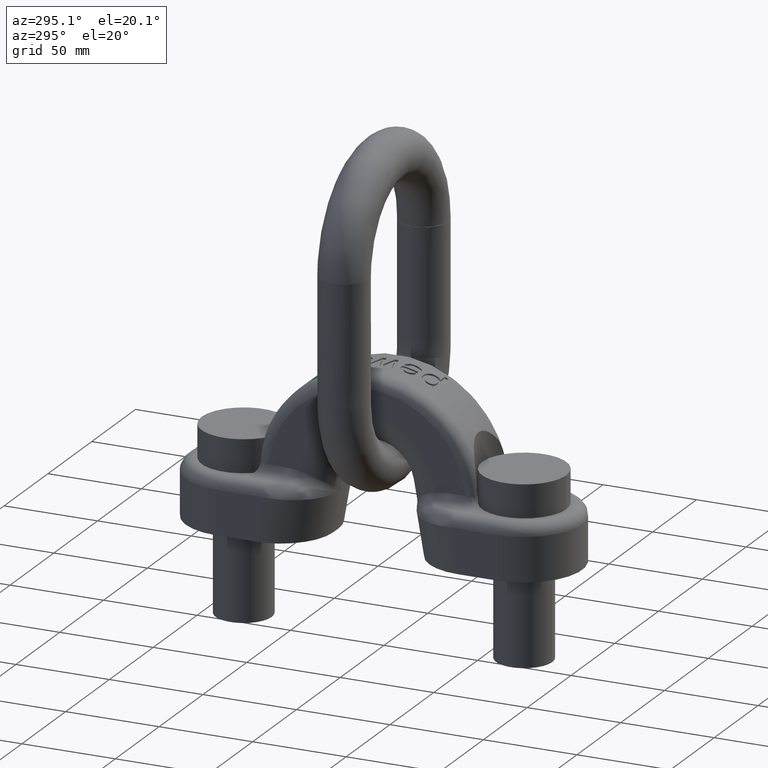
[diagram: clean part render]
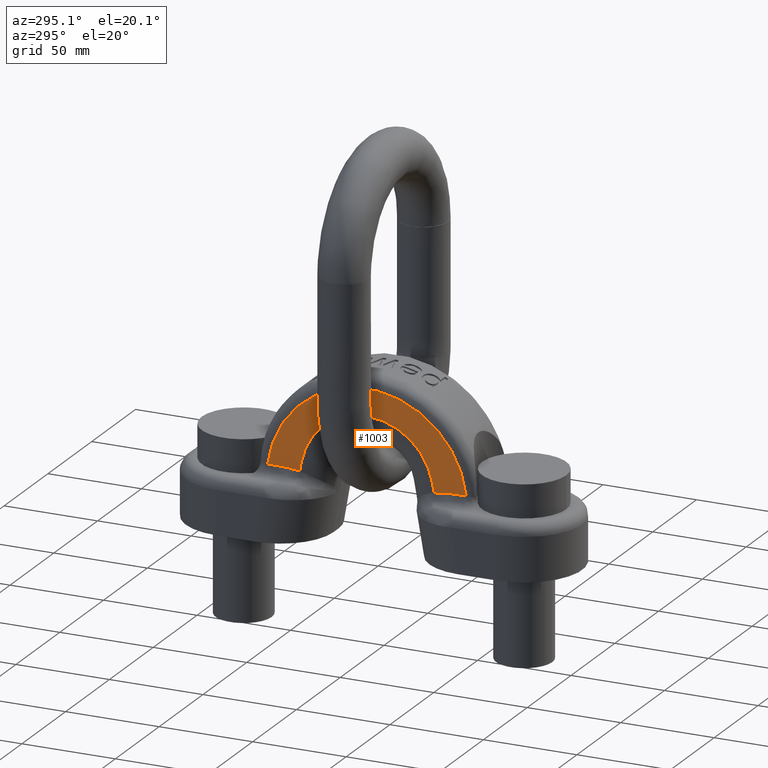
[diagram: same view with one face highlighted and labeled with its STEP entity id]
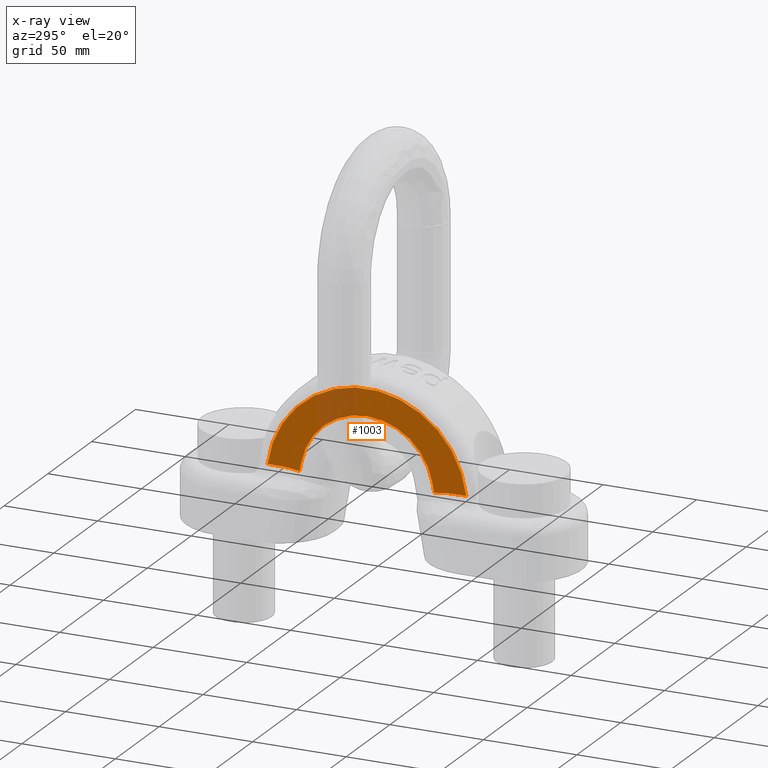
[diagram: x-ray of the same camera — body ghosted, the highlighted face saturated]
A machine part, auxiliary view. The second image highlights one B-rep face of the part: STEP entity #1003.
The next image is the same camera in x-ray: the body ghosted, the highlighted face saturated — about 17% of this face is hidden behind the body in this view.
In plain terms, the highlighted planar face has unit normal (-1, 0, 0).
Its self-contained STEP definition (entity closure, byte-faithful):
#754=PLANE('',#3606);
#851=FACE_OUTER_BOUND('',#1576,.T.);
#1003=ADVANCED_FACE('',(#851),#754,.T.);
#1227=LINE('',#5268,#1353);
#1228=LINE('',#5278,#1354);
#1229=LINE('',#5279,#1355);
#1230=LINE('',#5288,#1356);
#1353=VECTOR('',#3934,1.);
#1354=VECTOR('',#3935,1.);
#1355=VECTOR('',#3936,1.);
#1356=VECTOR('',#3937,1.);
#1576=EDGE_LOOP('',(#2236,#2237,#2238,#2239,#2240,#2241,#2242,#2243));
#1800=B_SPLINE_CURVE_WITH_KNOTS('',3,(#5271,#5272,#5273,#5274,#5275,#5276),
 .UNSPECIFIED.,.F.,.F.,(4,2,4),(0.,0.5,1.),.UNSPECIFIED.);
#1801=B_SPLINE_CURVE_WITH_KNOTS('',3,(#5281,#5282,#5283,#5284,#5285,#5286),
 .UNSPECIFIED.,.F.,.F.,(4,2,4),(0.,0.5,1.),.UNSPECIFIED.);
#1974=CIRCLE('',#3550,53.5);
#1999=CIRCLE('',#3605,35.7509657052612);
#2236=ORIENTED_EDGE('',*,*,#3259,.T.);
#2237=ORIENTED_EDGE('',*,*,#3260,.T.);
#2238=ORIENTED_EDGE('',*,*,#3261,.T.);
#2239=ORIENTED_EDGE('',*,*,#3174,.T.);
#2240=ORIENTED_EDGE('',*,*,#3262,.T.);
#2241=ORIENTED_EDGE('',*,*,#3263,.T.);
#2242=ORIENTED_EDGE('',*,*,#3264,.T.);
#2243=ORIENTED_EDGE('',*,*,#3265,.T.);
#2911=VERTEX_POINT('',#5010);
#2912=VERTEX_POINT('',#5012);
#2974=VERTEX_POINT('',#5269);
#2975=VERTEX_POINT('',#5270);
#2976=VERTEX_POINT('',#5277);
#2977=VERTEX_POINT('',#5280);
#2978=VERTEX_POINT('',#5287);
#2979=VERTEX_POINT('',#5289);
#3174=EDGE_CURVE('',#2912,#2911,#1974,.T.);
#3259=EDGE_CURVE('',#2974,#2975,#1227,.T.);
#3260=EDGE_CURVE('',#2975,#2976,#1800,.T.);
#3261=EDGE_CURVE('',#2976,#2912,#1228,.T.);
#3262=EDGE_CURVE('',#2911,#2977,#1229,.T.);
#3263=EDGE_CURVE('',#2977,#2978,#1801,.T.);
#3264=EDGE_CURVE('',#2978,#2979,#1230,.T.);
#3265=EDGE_CURVE('',#2979,#2974,#1999,.T.);
#3550=AXIS2_PLACEMENT_3D('',#5011,#3788,#3789);
#3605=AXIS2_PLACEMENT_3D('',#5290,#3938,#3939);
#3606=AXIS2_PLACEMENT_3D('',#5291,#3940,#3941);
#3788=DIRECTION('',(-1.,0.,0.));
#3789=DIRECTION('',(0.,0.,1.));
#3934=DIRECTION('',(0.,-0.17364817766693,-0.984807753012208));
#3935=DIRECTION('',(0.,-1.,4.52536558950471E-16));
#3936=DIRECTION('',(0.,-1.,-4.52536558950471E-16));
#3937=DIRECTION('',(0.,-0.17364817766693,0.984807753012208));
#3938=DIRECTION('',(1.,0.,0.));
#3939=DIRECTION('',(0.,0.,1.));
#3940=DIRECTION('',(-1.,0.,0.));
#3941=DIRECTION('',(0.,0.,1.));
#5010=CARTESIAN_POINT('',(-19.5,53.11422813533,36.4131715701449));
#5011=CARTESIAN_POINT('',(-19.5,3.46944695195361E-15,30.));
#5012=CARTESIAN_POINT('',(-19.5,-53.11422813533,36.4131715701449));
#5268=CARTESIAN_POINT('',(-19.5,-3.81750814642527,217.731441500275));
#5269=CARTESIAN_POINT('',(-19.5,-35.2078282042148,39.7080900445515));
#5270=CARTESIAN_POINT('',(-19.5,-35.9735456883426,35.365490397854));
#5271=CARTESIAN_POINT('',(-19.5,-35.9735456883426,35.3654903978541));
#5272=CARTESIAN_POINT('',(-19.5,-38.2674219715674,35.8893137893353));
#5273=CARTESIAN_POINT('',(-19.5,-40.5830552929815,36.1240429875007));
#5274=CARTESIAN_POINT('',(-19.5,-45.2300269216843,36.3848231536884));
#5275=CARTESIAN_POINT('',(-19.5,-47.5611923245202,36.4131715701449));
#5276=CARTESIAN_POINT('',(-19.5,-49.894491210469,36.4131715701449));
#5277=CARTESIAN_POINT('',(-19.5,-49.894491210469,36.4131715701449));
#5278=CARTESIAN_POINT('',(-19.5,-53.5,36.4131715701449));
#5279=CARTESIAN_POINT('',(-19.5,36.9196264102165,36.4131715701449));
#5280=CARTESIAN_POINT('',(-19.5,49.894491210469,36.4131715701449));
#5281=CARTESIAN_POINT('',(-19.5,49.894491210469,36.4131715701449));
#5282=CARTESIAN_POINT('',(-19.5,47.5611923245202,36.4131715701449));
#5283=CARTESIAN_POINT('',(-19.5,45.2300269216843,36.3848231536884));
#5284=CARTESIAN_POINT('',(-19.5,40.5830552929815,36.1240429875007));
#5285=CARTESIAN_POINT('',(-19.5,38.2674219715674,35.8893137893353));
#5286=CARTESIAN_POINT('',(-19.5,35.9735456883426,35.3654903978541));
#5287=CARTESIAN_POINT('',(-19.5,35.9735456883426,35.365490397854));
#5288=CARTESIAN_POINT('',(-19.5,0.199065393579778,238.252650099815));
#5289=CARTESIAN_POINT('',(-19.5,35.2078282042148,39.7080900445515));
#5290=CARTESIAN_POINT('',(-19.5,0.,33.5));
#5291=CARTESIAN_POINT('',(-19.5,-60.,227.637930657494));